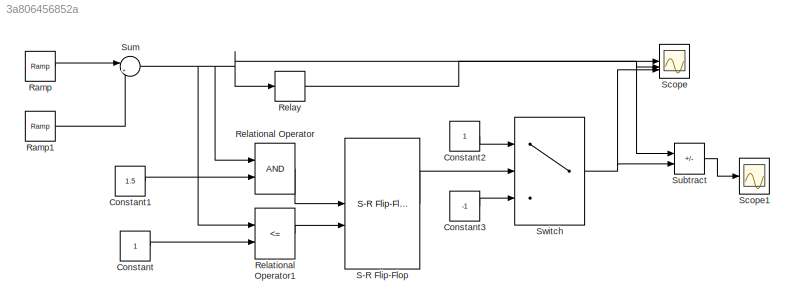
MODEL slx_3a806456852a
KIND model
CONFIG AbsTol = auto
CONFIG EnableMultiTasking = off
CONFIG FixedStep = auto
CONFIG MaxStep = auto
CONFIG MinStep = auto
CONFIG RelTol = 1e-3
CONFIG SampleTimeConstraint = Unconstrained
CONFIG SolverName = VariableStepAuto
CONFIG StartTime = 0.0
CONFIG StopTime = 10.0
BLOCK [Constant] Constant
BLOCK [Constant] Constant1
  Value = 1.5
BLOCK [Constant] Constant2
BLOCK [Constant] Constant3
  Value = -1
BLOCK [Reference] Ramp  REF=simulink/Sources/Ramp
  SourceBlock = simulink/Sources/Ramp
  SourceType = Ramp
BLOCK [Reference] Ramp1  REF=simulink/Sources/Ramp
  SourceBlock = simulink/Sources/Ramp
  SourceType = Ramp
BLOCK [RelationalOperator] Relational Operator
  InputSameDT = off
  OutDataTypeStr = boolean
  RndMeth = Simplest
BLOCK [RelationalOperator] Relational Operator1
  InputSameDT = off
  Operator = <=
  OutDataTypeStr = boolean
  RndMeth = Simplest
BLOCK [Relay] Relay
  OffOutputValue = -1
  OffSwitchValue = 1
  OnSwitchValue = 1.5
BLOCK [Reference] S-R Flip-Flop  REF=simulink_extras/Flip Flops/S-R
Flip-Flop
  SourceBlock = simulink_extras/Flip Flops/S-R\nFlip-Flop
  SourceType = SRFlipFlop
BLOCK [Scope] Scope
  ActiveDisplayYMaximum = 3.3743122657106688
  ActiveDisplayYMinimum = -2.0281157032276673
  Floating = off
  GraphicalSettings = {"AxesScalingProperties":{"AlignXAxis":"Center","AlignYAxis":"Center","AutoScaleXAxisLimits":false,"AxesScaling":"Manual","AxesScalingNumUpdates":10,"ExpandOnly":true,"ScaleAxesLimitsAtStop":false,"XAxisDataRange":100,"YAxisDataRange":80},"DisplayProperties":{"ColorOrder":["auto","auto","auto","auto","auto","auto","auto","auto","auto","auto","auto","auto","auto","auto","auto","auto","auto","auto",...<+2199ch>
  MultipleDisplayCache = [{"MaxYLimMag":1.125,"MaxYLimReal":3.3743122657106688,"MinYLimMag":0,"MinYLimReal":-2.0281157032276673,"PlotAsMagnitudePhase":false,"ShowGrid":true,"ShowLegend":false,"Title":"%<SignalLabel>","YLabel":""}]
  NumInputPorts = 3
  ScopeFrameLocation = window
  Visible = on
  WasSavedAsWebScope = on
  WindowPosition = [1688.000000,293.000000,560.000000,420.000000,]
BLOCK [Scope] Scope1
  ActiveDisplayYMaximum = 1.1802660562699137
  ActiveDisplayYMinimum = -1.8787968946104956
  DataLoggingVariableName = ScopeData1
  Floating = off
  GraphicalSettings = {"AxesScalingProperties":{"AlignXAxis":"Center","AlignYAxis":"Center","AutoScaleXAxisLimits":false,"AxesScaling":"Manual","AxesScalingNumUpdates":10,"ExpandOnly":true,"ScaleAxesLimitsAtStop":false,"XAxisDataRange":100,"YAxisDataRange":80},"DisplayProperties":{"ColorOrder":["auto","auto","auto","auto","auto","auto","auto","auto","auto","auto","auto","auto","auto","auto","auto","auto","auto","auto",...<+1980ch>
  MultipleDisplayCache = [{"MaxYLimMag":1.125,"MaxYLimReal":1.1802660562699137,"MinYLimMag":0,"MinYLimReal":-1.8787968946104956,"PlotAsMagnitudePhase":false,"ShowGrid":true,"ShowLegend":false,"Title":"%<SignalLabel>","YLabel":""}]
  NumInputPorts = 1
  ScopeFrameLocation = window
  WasSavedAsWebScope = on
  WindowPosition = [1531.000000,232.000000,560.000000,420.000000,]
BLOCK [Sum] Subtract
  IconShape = rectangular
  Inputs = +-
BLOCK [Sum] Sum
  Inputs = |++
BLOCK [Switch] Switch
  Criteria = u2 > Threshold
  InputSameDT = off
  SaturateOnIntegerOverflow = off
LINE Constant1:1 -> Relational Operator:2
LINE Constant2:1 -> Switch:1
LINE Constant3:1 -> Switch:3
LINE Constant:1 -> Relational Operator1:2
LINE Ramp1:1 -> Sum:2
LINE Ramp:1 -> Sum:1
LINE Relational Operator1:1 -> S-R Flip-Flop:2
LINE Relational Operator:1 -> S-R Flip-Flop:1
NET Relay:1 -> Scope:2, Subtract:1
LINE S-R Flip-Flop:1 -> Switch:2
LINE Subtract:1 -> Scope1:1
NET Sum:1 -> Relational Operator1:1, Relational Operator:1, Relay:1, Scope:1
NET Switch:1 -> Scope:3, Subtract:2
note: NET lines group one-source signal fan-out (src -> all destinations, sorted); 1:1 wires keep LINE
